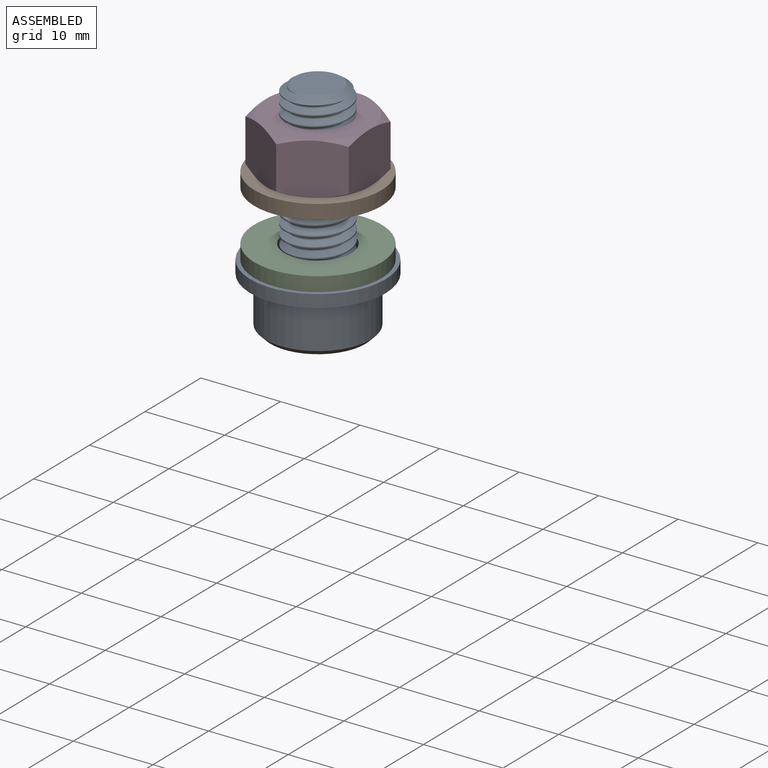
[diagram: assembled view]
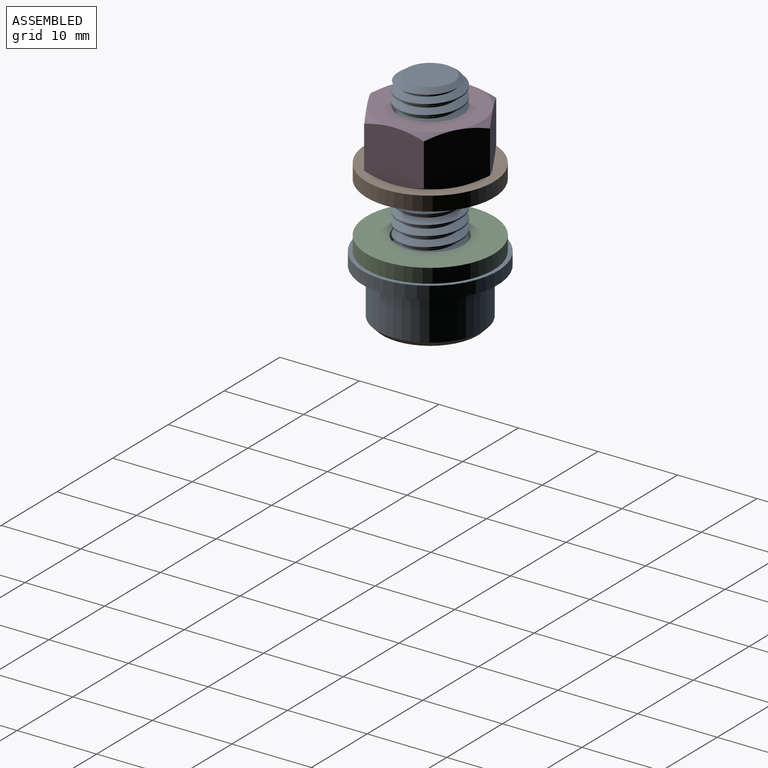
[diagram: assembled view, second angle]
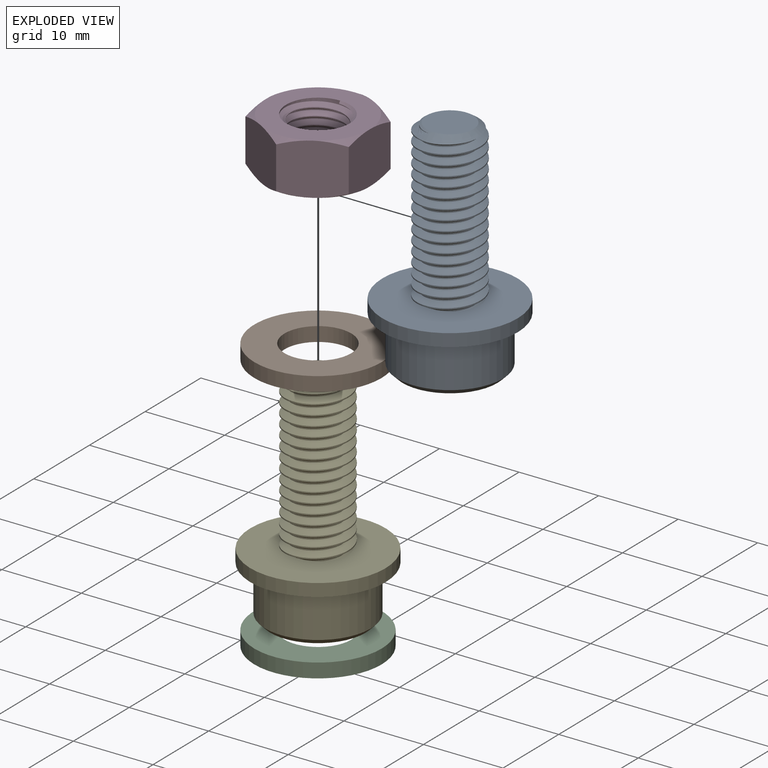
[diagram: exploded view]
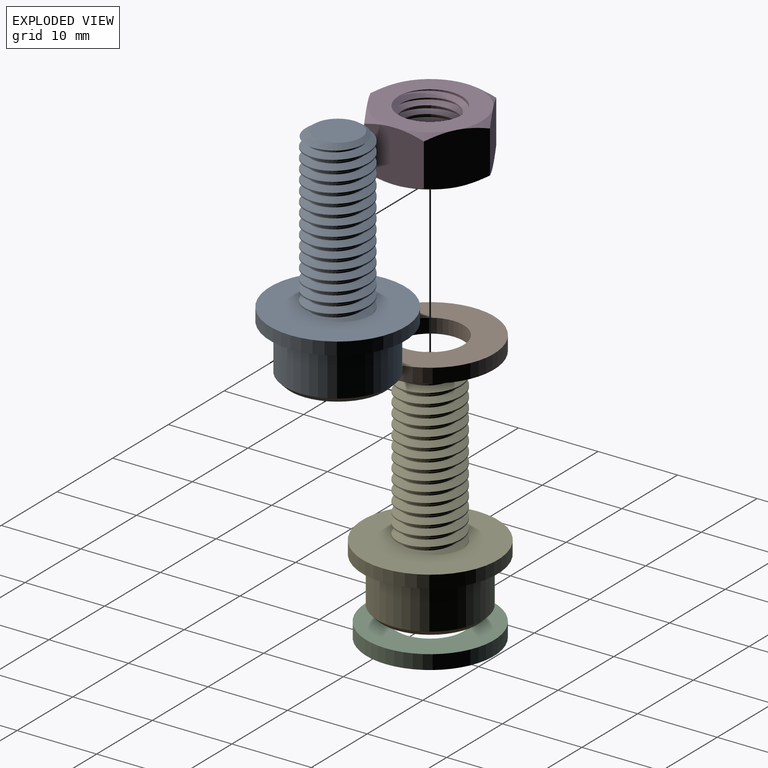
[diagram: exploded view, second angle]
ASSEMBLY  parts=5 mates=3
PART A: 26 faces, bbox 17.5x17.5x28.8 mm
  f0: torus R=7.05mm, axis (0,0,1), area 26.6mm2, adj f3,f12
  f1: cone r=5.98mm half-angle=45deg, axis (0,0,1), area 37.3mm2, adj f3,f13
  f2: cone r=3.46mm half-angle=45deg, axis (0,0,-1), area 1.1mm2, adj f13,f24
  f3: cylinder r=6.65mm len=13.3mm, axis (0,0,1), area 223.6mm2, adj f0,f1
  f4: cylinder r=8.5mm len=17mm, axis (0,0,1), area 84.8mm2, adj f11,f12
  f5: cone r=2.93mm half-angle=55deg, axis (0,0,-1), area 16.9mm2, adj f6,f7,f8,f9,f10
  f6: cylinder r=3.19mm len=19.82mm, axis (0,0,-1), area 49.6mm2, adj f5,f8,f9,f11
  f7: cylinder r=4mm len=19.25mm, axis (0,0,1), area 60.5mm2, adj f5,f8,f9,f11
  f8: bspline ~20.76x7.78mm, area 333.3mm2, adj f5,f6,f7,f11
  f9: bspline ~20.29x7.99mm, area 331.1mm2, adj f5,f6,f7,f11
  f10: plane 5.87x5.87mm, normal (0,0,1), area 27mm2, adj f5
  f11: plane 17.5x17.5mm, normal (0,0,1), area 186.1mm2, adj f4,f6,f7,f8,f9
  f12: plane 17x17mm, normal (0,0,-1), area 71mm2, adj f0,f4
  f13: plane 11.97x11.97mm, normal (0,0,-1), area 74.8mm2, adj f1,f2,f14,f15,f16,f17,f18
  f14: cone r=3.46mm half-angle=45deg, axis (0,0,-1), area 1.5mm2, adj f13,f20
  f15: cone r=3.46mm half-angle=45deg, axis (0,0,-1), area 1.5mm2, adj f13,f21
  f16: cone r=3.46mm half-angle=45deg, axis (0,0,-1), area 1.5mm2, adj f13,f22
  f17: cone r=3.46mm half-angle=45deg, axis (0,0,-1), area 1.5mm2, adj f13,f23
  f18: cone r=3.46mm half-angle=45deg, axis (0,0,-1), area 1.5mm2, adj f13,f25
  f19: plane 6.93x6mm, normal (0,0,-1), area 31.2mm2, adj f20,f21,f22,f23,f24,f25
  f20: plane 4.5x3mm, normal (-0.5,-0.87,0), area 14.5mm2, adj f14,f19,f21,f25
  f21: plane 4.5x3.46mm, normal (-1,0,0), area 14.5mm2, adj f15,f19,f20,f22
  f22: plane 4.5x3mm, normal (-0.5,0.87,0), area 14.5mm2, adj f16,f19,f21,f23
  f23: plane 4.5x3mm, normal (0.5,0.87,0), area 14.5mm2, adj f17,f19,f22,f24
  f24: plane 4.84x3.8mm, normal (1,0,0), area 14.5mm2, adj f2,f19,f23,f25
  f25: plane 4.5x3mm, normal (0.5,-0.87,0), area 14.5mm2, adj f18,f19,f20,f24
PART B: 4 faces, bbox 16x16x1.8 mm
  f0: cylinder r=4.2mm len=8.4mm, axis (0,0,-1), area 47.5mm2, adj f2,f3
  f1: cylinder r=8mm len=16mm, axis (0,0,-1), area 90.5mm2, adj f2,f3
  f2: plane 16x16mm, normal (0,0,1), area 145.6mm2, adj f0,f1
  f3: plane 16x16mm, normal (0,0,-1), area 145.6mm2, adj f0,f1
PART C: same geometry as B
PART D: 27 faces, bbox 15.6x15.6x7.4 mm
  f0: cylinder r=4mm len=8mm, axis (0,0,-1), area 22.2mm2, adj f2,f10,f11,f12,f13,f14
  f1: cylinder r=3.35mm len=6.7mm, axis (0,0,1), area 13.7mm2, adj f2,f3,f13,f14
  f2: cone r=4mm half-angle=45deg, axis (0,0,-1), area 10.8mm2, adj f0,f1,f11,f13,f14
  f3: cone r=4mm half-angle=45deg, axis (0,0,1), area 9.3mm2, adj f1,f10,f12,f13,f14
  f4: plane 7.12x7.12mm, normal (-0.5,0.87,0), area 45.8mm2, adj f5,f9,f18,f19,f22,f23
  f5: plane 8.12x7.12mm, normal (-1,0,0), area 45.8mm2, adj f4,f6,f17,f18,f23,f24
  f6: plane 7.12x7.12mm, normal (-0.5,-0.87,0), area 45.8mm2, adj f5,f7,f16,f17,f24,f25
  f7: plane 7.12x7.12mm, normal (0.5,-0.87,0), area 45.8mm2, adj f6,f8,f15,f16,f25,f26
  f8: plane 8.12x7.12mm, normal (1,0,0), area 45.8mm2, adj f7,f9,f15,f20,f21,f26
  f9: plane 7.12x7.12mm, normal (0.5,0.87,0), area 45.8mm2, adj f4,f8,f19,f20,f21,f22
  f10: plane 13x13mm, normal (0,0,1), area 82.5mm2, adj f0,f3,f15,f16,f17,f18,f19,f20
  f11: plane 13x13mm, normal (0,0,-1), area 82.5mm2, adj f0,f2,f21,f22,f23,f24,f25,f26
  f12: plane 0.38x0.24mm, normal (-1,0,0), area 0mm2, adj f0,f3,f14
  f13: bspline ~8x8mm, area 100.6mm2, adj f0,f1,f2,f3
  f14: bspline ~8x8mm, area 100.5mm2, adj f0,f1,f2,f3,f12
  f15: cone r=6.5mm half-angle=60deg, axis (0,0,-1), area 4.2mm2, adj f7,f8,f10
  f16: cone r=6.5mm half-angle=60deg, axis (0,0,-1), area 4.2mm2, adj f6,f7,f10
  f17: cone r=6.5mm half-angle=60deg, axis (0,0,-1), area 4.2mm2, adj f5,f6,f10
  f18: cone r=6.5mm half-angle=60deg, axis (0,0,-1), area 4.2mm2, adj f4,f5,f10
  f19: cone r=6.5mm half-angle=60deg, axis (0,0,-1), area 4.2mm2, adj f4,f9,f10
  f20: cone r=6.5mm half-angle=60deg, axis (0,0,-1), area 4.2mm2, adj f8,f9,f10
  f21: cone r=6.5mm half-angle=60deg, axis (0,0,1), area 4.2mm2, adj f8,f9,f11
  f22: cone r=6.5mm half-angle=60deg, axis (0,0,1), area 4.2mm2, adj f4,f9,f11
  f23: cone r=6.5mm half-angle=60deg, axis (0,0,1), area 4.2mm2, adj f4,f5,f11
  f24: cone r=6.5mm half-angle=60deg, axis (0,0,1), area 4.2mm2, adj f5,f6,f11
  f25: cone r=6.5mm half-angle=60deg, axis (0,0,1), area 4.2mm2, adj f6,f7,f11
  f26: cone r=6.5mm half-angle=60deg, axis (0,0,1), area 4.2mm2, adj f7,f8,f11
PART E: same geometry as A
PLACE A t=(-2.02,-7.49,4.52)mm fixed
PLACE B t=(-2.02,-7.49,-7.28)mm
PLACE C t=(-2.02,-7.49,-15.48)mm
PLACE D t=(-2.02,-7.49,-2.23)mm
PLACE E t=(-2.02,-7.49,4.52)mm fixed
MATE fastened B.f0 <-> D.f0  axis (0,0,1) through (-2.02,-7.49,-5.48)mm
MATE fastened E.f0 <-> D.f0  axis (0,0,1) through (-2.02,-7.49,4.52)mm
MATE fastened E.f0 <-> C.f0  axis (0,0,1) through (-2.02,-7.49,-15.48)mm
